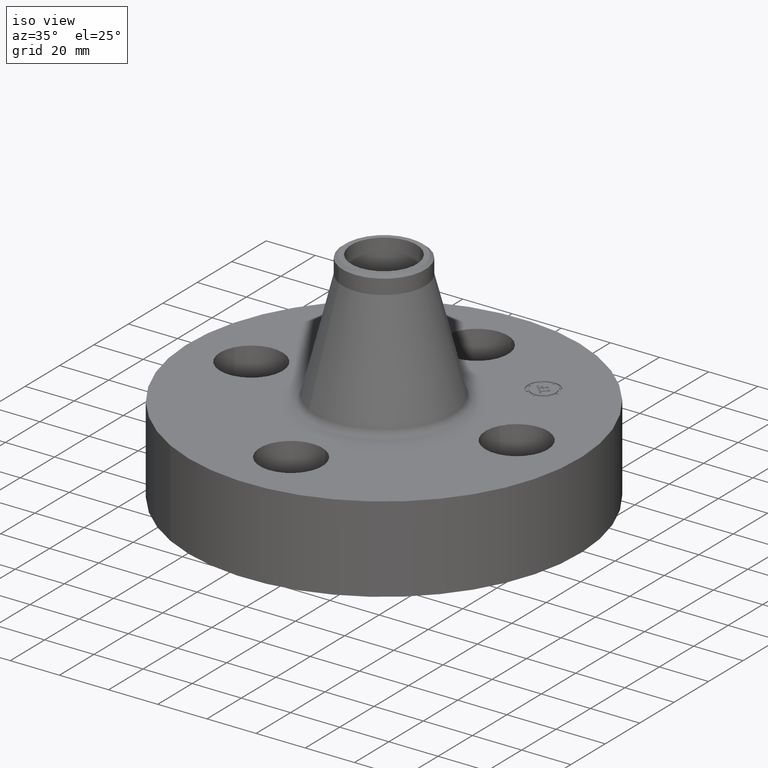
[diagram: clean part render]
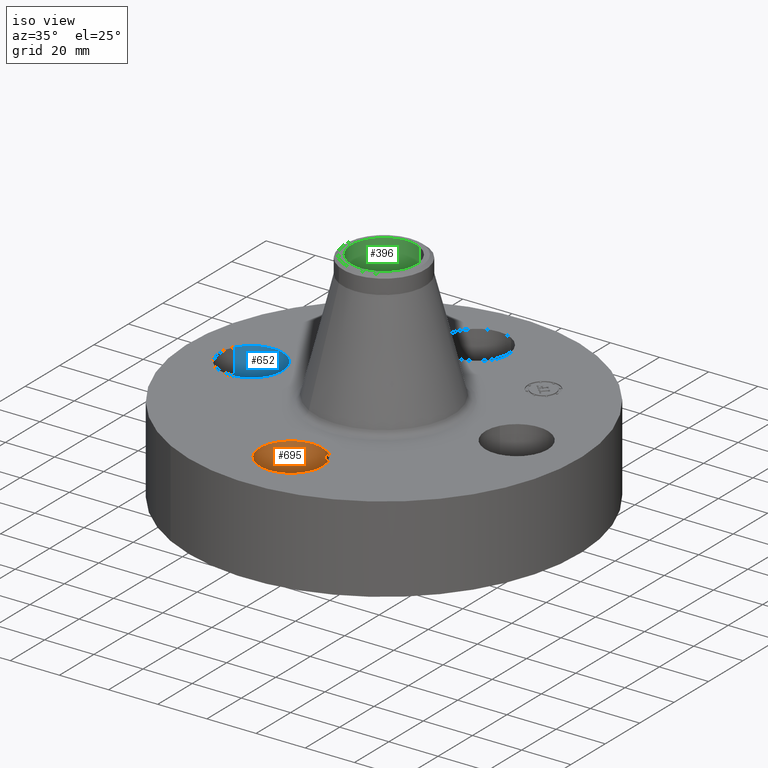
[diagram: same view with three faces highlighted in distinct colors, each labeled with its STEP entity id]
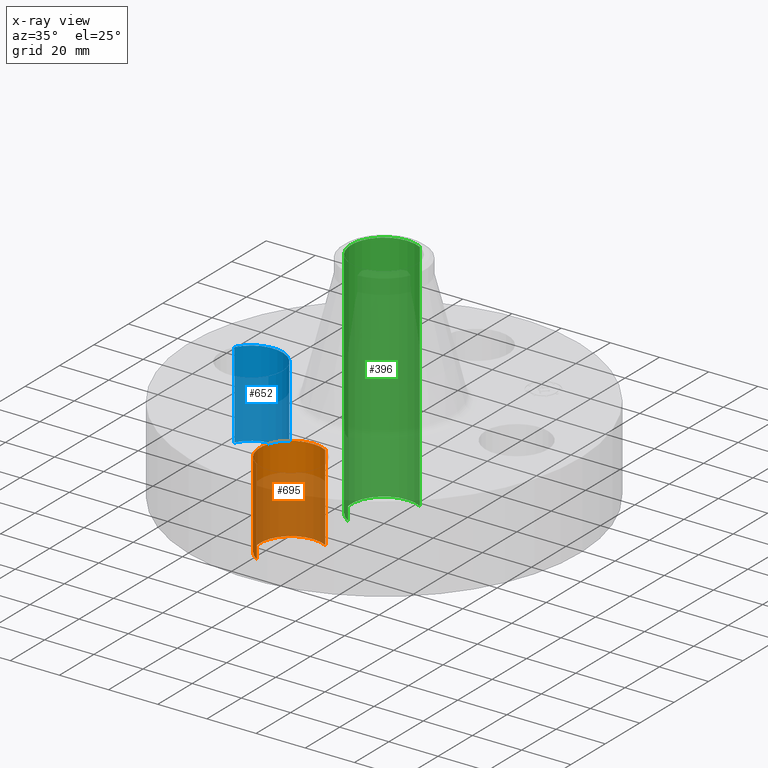
[diagram: x-ray of the same camera — body ghosted, the three highlighted faces saturated]
A machine part, iso view with three faces highlighted in distinct colors.
The next image is the same camera in x-ray (body ghosted, the three faces saturated) — at least one of them is partly hidden behind the body in this view.
Their STEP definitions:

[orange] entity #695 — the highlighted cylindrical surface (partial cylindrical patch) has radius 12.7 mm, axis along (0, -0, -1).
#523=AXIS2_PLACEMENT_3D('Circle Axis2P3D',#521,#522,$) ;
#656=AXIS2_PLACEMENT_3D('Cylinder Axis2P3D',#653,#654,#655) ;
#686=AXIS2_PLACEMENT_3D('Circle Axis2P3D',#684,#685,$) ;
#516=CARTESIAN_POINT('Vertex',(0.239712769303,-1.68620871906,0.)) ;
#518=CARTESIAN_POINT('Vertex',(-0.239712769303,-2.56379128096,0.)) ;
#521=CARTESIAN_POINT('Axis2P3D Location',(2.79741234551E-016,-2.12500000001,0.)) ;
#653=CARTESIAN_POINT('Axis2P3D Location',(1.3011872241E-016,-2.12500000001,1.37606299213)) ;
#658=CARTESIAN_POINT('Line Origine',(0.239712769303,-1.68620871906,0.690000000003)) ;
#662=CARTESIAN_POINT('Vertex',(0.239712769303,-1.68620871906,1.38000000001)) ;
#665=CARTESIAN_POINT('Line Origine',(-0.239712769303,-2.56379128096,0.690000000003)) ;
#669=CARTESIAN_POINT('Vertex',(-0.239712769303,-2.56379128096,1.38000000001)) ;
#684=CARTESIAN_POINT('Axis2P3D Location',(1.3011872241E-016,-2.12500000001,1.38000000001)) ;
#522=DIRECTION('Axis2P3D Direction',(0.,0.,-0.0393700787402)) ;
#654=DIRECTION('Axis2P3D Direction',(0.,-0.,-0.0393700787402)) ;
#655=DIRECTION('Axis2P3D XDirection',(-0.0188750212049,-0.0345504945626,0.)) ;
#659=DIRECTION('Vector Direction',(0.,0.,-0.0393700787402)) ;
#666=DIRECTION('Vector Direction',(0.,0.,-0.0393700787402)) ;
#685=DIRECTION('Axis2P3D Direction',(0.,-0.,-0.0393700787402)) ;
#660=VECTOR('Line Direction',#659,0.0393700787402) ;
#667=VECTOR('Line Direction',#666,0.0393700787402) ;
#690=ORIENTED_EDGE('',*,*,#671,.F.) ;
#691=ORIENTED_EDGE('',*,*,#525,.T.) ;
#692=ORIENTED_EDGE('',*,*,#664,.T.) ;
#693=ORIENTED_EDGE('',*,*,#688,.F.) ;
#695=ADVANCED_FACE('PartBody',(#694),#657,.F.) ;
#524=CIRCLE('generated circle',#523,0.500000000002) ;
#687=CIRCLE('generated circle',#686,0.500000000002) ;
#657=CYLINDRICAL_SURFACE('generated cylinder',#656,0.500000000002) ;
#525=EDGE_CURVE('',#519,#517,#524,.T.) ;
#664=EDGE_CURVE('',#517,#663,#661,.F.) ;
#671=EDGE_CURVE('',#519,#670,#668,.F.) ;
#688=EDGE_CURVE('',#670,#663,#687,.T.) ;
#689=EDGE_LOOP('',(#690,#691,#692,#693)) ;
#694=FACE_OUTER_BOUND('',#689,.T.) ;
#661=LINE('Line',#658,#660) ;
#668=LINE('Line',#665,#667) ;
#517=VERTEX_POINT('',#516) ;
#519=VERTEX_POINT('',#518) ;
#663=VERTEX_POINT('',#662) ;
#670=VERTEX_POINT('',#669) ;

[blue] entity #652 — the highlighted cylindrical surface (partial cylindrical patch) has radius 12.7 mm, axis along (-0, 0, -1).
#541=AXIS2_PLACEMENT_3D('Circle Axis2P3D',#539,#540,$) ;
#613=AXIS2_PLACEMENT_3D('Cylinder Axis2P3D',#610,#611,#612) ;
#643=AXIS2_PLACEMENT_3D('Circle Axis2P3D',#641,#642,$) ;
#534=CARTESIAN_POINT('Vertex',(-1.68620871906,-0.239712769303,0.)) ;
#536=CARTESIAN_POINT('Vertex',(-2.56379128096,0.239712769303,0.)) ;
#539=CARTESIAN_POINT('Axis2P3D Location',(-2.12500000001,-1.39870617276E-016,0.)) ;
#610=CARTESIAN_POINT('Axis2P3D Location',(-2.12500000001,-2.6023744482E-016,1.37606299213)) ;
#615=CARTESIAN_POINT('Line Origine',(-1.68620871906,-0.239712769303,0.690000000003)) ;
#619=CARTESIAN_POINT('Vertex',(-1.68620871906,-0.239712769303,1.38000000001)) ;
#622=CARTESIAN_POINT('Line Origine',(-2.56379128096,0.239712769303,0.690000000003)) ;
#626=CARTESIAN_POINT('Vertex',(-2.56379128096,0.239712769303,1.38000000001)) ;
#641=CARTESIAN_POINT('Axis2P3D Location',(-2.12500000001,-2.6023744482E-016,1.38000000001)) ;
#540=DIRECTION('Axis2P3D Direction',(0.,0.,-0.0393700787402)) ;
#611=DIRECTION('Axis2P3D Direction',(-0.,0.,-0.0393700787402)) ;
#612=DIRECTION('Axis2P3D XDirection',(-0.0345504945626,0.0188750212049,0.)) ;
#616=DIRECTION('Vector Direction',(0.,0.,-0.0393700787402)) ;
#623=DIRECTION('Vector Direction',(0.,0.,-0.0393700787402)) ;
#642=DIRECTION('Axis2P3D Direction',(-0.,0.,-0.0393700787402)) ;
#617=VECTOR('Line Direction',#616,0.0393700787402) ;
#624=VECTOR('Line Direction',#623,0.0393700787402) ;
#647=ORIENTED_EDGE('',*,*,#628,.F.) ;
#648=ORIENTED_EDGE('',*,*,#543,.T.) ;
#649=ORIENTED_EDGE('',*,*,#621,.T.) ;
#650=ORIENTED_EDGE('',*,*,#645,.F.) ;
#652=ADVANCED_FACE('PartBody',(#651),#614,.F.) ;
#542=CIRCLE('generated circle',#541,0.500000000002) ;
#644=CIRCLE('generated circle',#643,0.500000000002) ;
#614=CYLINDRICAL_SURFACE('generated cylinder',#613,0.500000000002) ;
#543=EDGE_CURVE('',#537,#535,#542,.T.) ;
#621=EDGE_CURVE('',#535,#620,#618,.F.) ;
#628=EDGE_CURVE('',#537,#627,#625,.F.) ;
#645=EDGE_CURVE('',#627,#620,#644,.T.) ;
#646=EDGE_LOOP('',(#647,#648,#649,#650)) ;
#651=FACE_OUTER_BOUND('',#646,.T.) ;
#618=LINE('Line',#615,#617) ;
#625=LINE('Line',#622,#624) ;
#535=VERTEX_POINT('',#534) ;
#537=VERTEX_POINT('',#536) ;
#620=VERTEX_POINT('',#619) ;
#627=VERTEX_POINT('',#626) ;

[green] entity #396 — the highlighted cylindrical surface (partial cylindrical patch) has radius 13.3223 mm, axis along (0, 0, -1).
#343=AXIS2_PLACEMENT_3D('Cylinder Axis2P3D',#340,#341,#342) ;
#382=AXIS2_PLACEMENT_3D('Circle Axis2P3D',#380,#381,$) ;
#387=AXIS2_PLACEMENT_3D('Circle Axis2P3D',#385,#386,$) ;
#340=CARTESIAN_POINT('Axis2P3D Location',(0.,0.,1.62500000001)) ;
#349=CARTESIAN_POINT('Vertex',(0.251458694999,0.460292053713,3.50000000001)) ;
#351=CARTESIAN_POINT('Vertex',(-0.251458694999,-0.460292053713,3.50000000001)) ;
#354=CARTESIAN_POINT('Line Origine',(0.251458694999,0.460292053713,1.62500000001)) ;
#358=CARTESIAN_POINT('Vertex',(0.251458694999,0.460292053713,-0.250000000001)) ;
#365=CARTESIAN_POINT('Vertex',(-0.251458694999,-0.460292053713,-0.250000000001)) ;
#368=CARTESIAN_POINT('Line Origine',(-0.251458694999,-0.460292053713,1.62500000001)) ;
#380=CARTESIAN_POINT('Axis2P3D Location',(0.,0.,3.50000000001)) ;
#385=CARTESIAN_POINT('Axis2P3D Location',(0.,0.,-0.250000000001)) ;
#341=DIRECTION('Axis2P3D Direction',(0.,0.,-0.0393700787402)) ;
#342=DIRECTION('Axis2P3D XDirection',(-0.0188750212049,-0.0345504945626,0.)) ;
#355=DIRECTION('Vector Direction',(0.,0.,-0.0393700787402)) ;
#369=DIRECTION('Vector Direction',(0.,0.,-0.0393700787402)) ;
#381=DIRECTION('Axis2P3D Direction',(0.,0.,-0.0393700787402)) ;
#386=DIRECTION('Axis2P3D Direction',(0.,0.,-0.0393700787402)) ;
#356=VECTOR('Line Direction',#355,0.0393700787402) ;
#370=VECTOR('Line Direction',#369,0.0393700787402) ;
#391=ORIENTED_EDGE('',*,*,#384,.F.) ;
#392=ORIENTED_EDGE('',*,*,#372,.T.) ;
#393=ORIENTED_EDGE('',*,*,#389,.T.) ;
#394=ORIENTED_EDGE('',*,*,#360,.F.) ;
#396=ADVANCED_FACE('PartBody',(#395),#344,.F.) ;
#383=CIRCLE('generated circle',#382,0.524500000002) ;
#388=CIRCLE('generated circle',#387,0.524500000002) ;
#344=CYLINDRICAL_SURFACE('generated cylinder',#343,0.524500000002) ;
#360=EDGE_CURVE('',#350,#359,#357,.T.) ;
#372=EDGE_CURVE('',#352,#366,#371,.T.) ;
#384=EDGE_CURVE('',#352,#350,#383,.T.) ;
#389=EDGE_CURVE('',#366,#359,#388,.T.) ;
#390=EDGE_LOOP('',(#391,#392,#393,#394)) ;
#395=FACE_OUTER_BOUND('',#390,.T.) ;
#357=LINE('Line',#354,#356) ;
#371=LINE('Line',#368,#370) ;
#350=VERTEX_POINT('',#349) ;
#352=VERTEX_POINT('',#351) ;
#359=VERTEX_POINT('',#358) ;
#366=VERTEX_POINT('',#365) ;